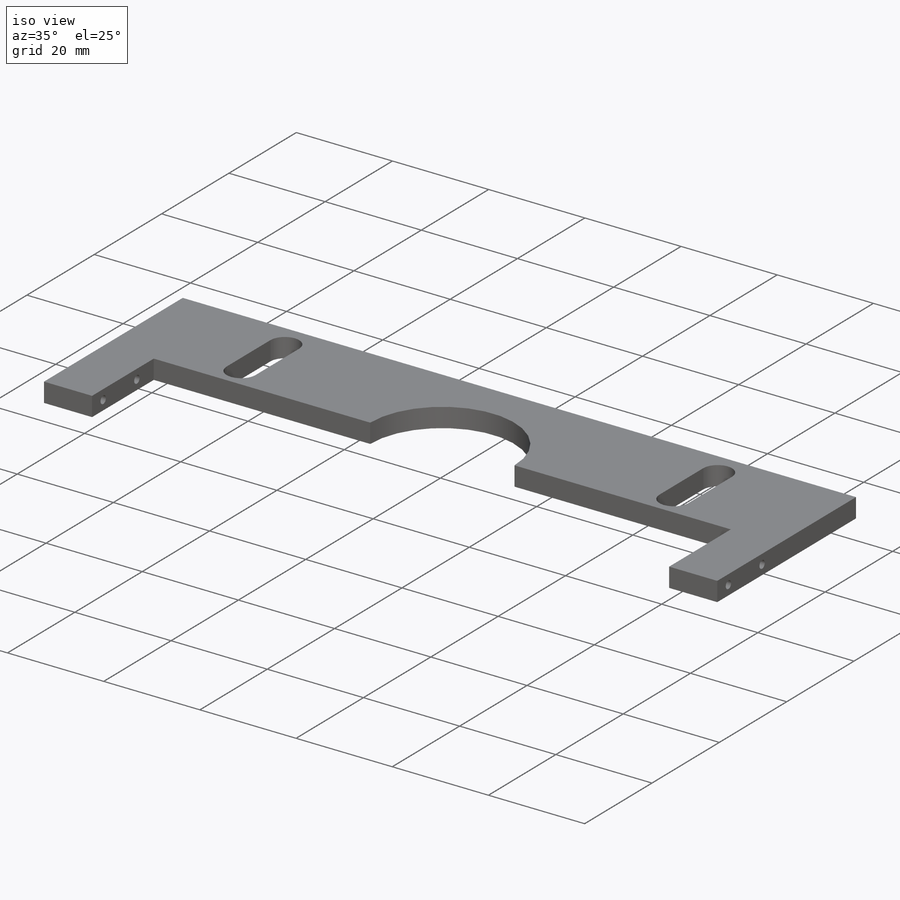
[diagram: iso view]
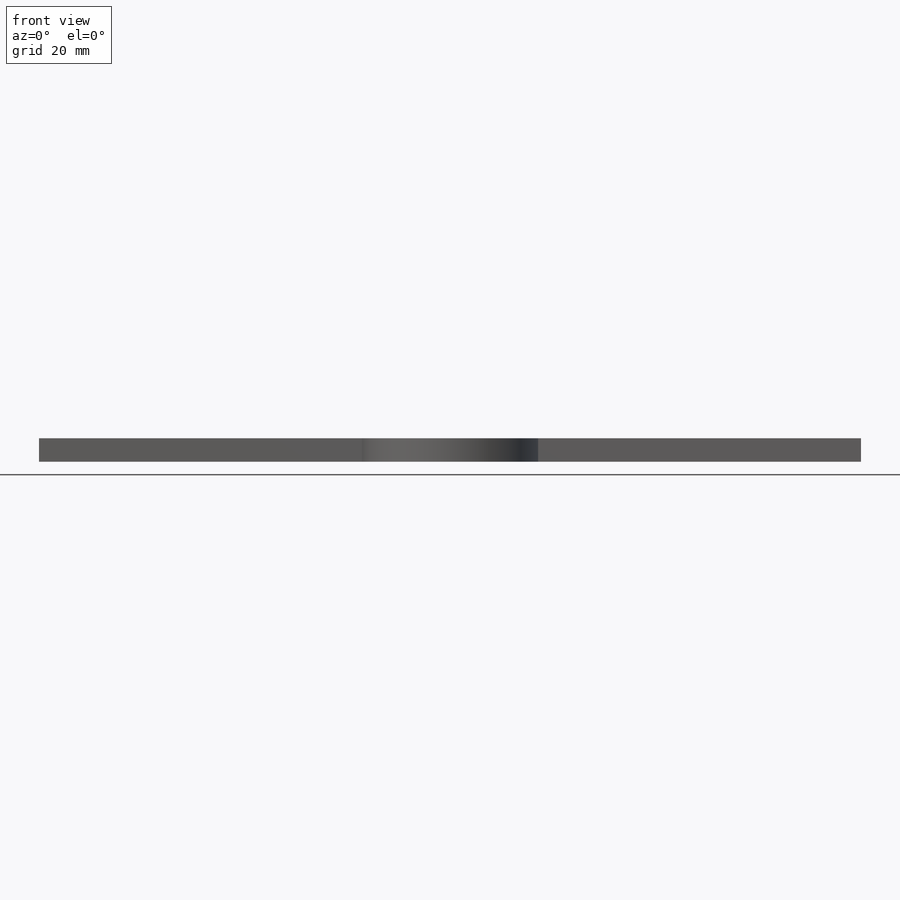
[diagram: front view]
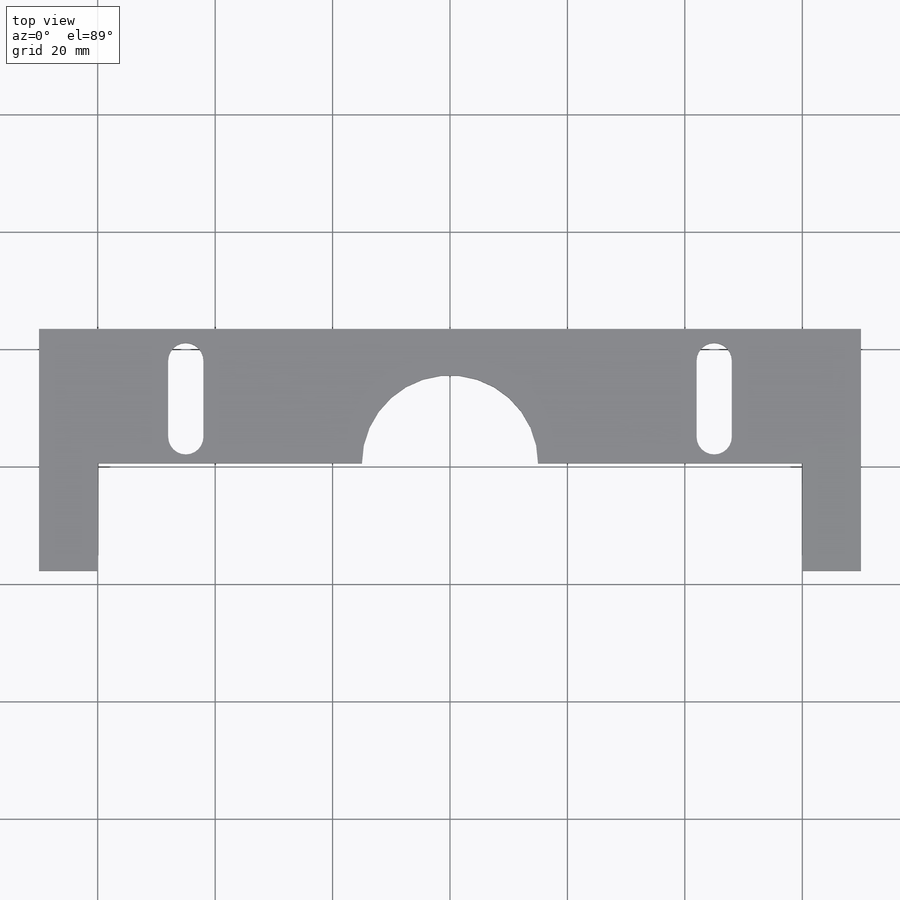
[diagram: top view]
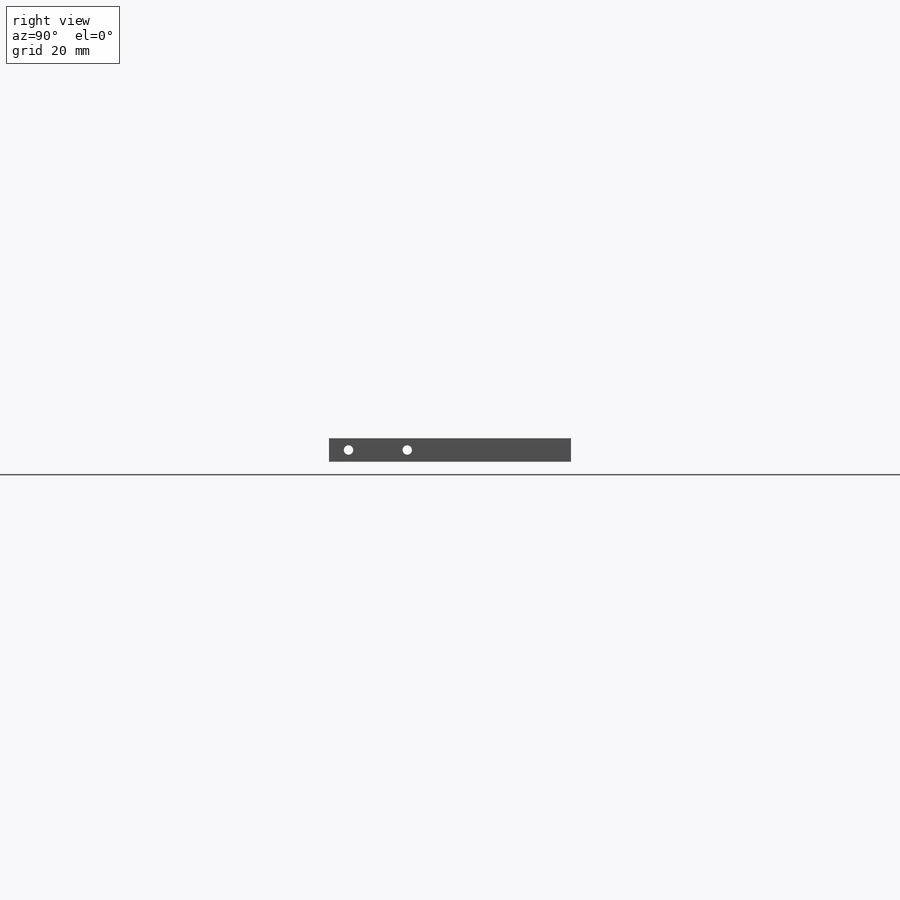
[diagram: right view]
SOLIDWORKS PART (.sldprt)
format: sldprt  version: not decoded by parser v0  size: 320,512 bytes
history: native  units: mm
features: sketch x11, cut_extrude x5, extrude x3, thread x2, material x1, hole x1, mirror x1 (+12 scaffold rows collapsed)
feature tree (36):
  scaffold x12  (default folders/planes/origin — collapsed)
  material  "A286 Iron Base Superalloy"
  sketch  "Sketch2"  dims[D1=140.0mm D2=38.89mm]
  extrude  "Boss-Extrude1"  Depth=4mm
  sketch  "Sketch3"  dims[c1.D1=2.0mm c1.D2=25.0mm c1.D3=12.5mm c2.D2=5.0mm c2.D3=12.0mm c3.D2=5.0mm c3.D3=10.0mm]
  hole  "M2x0.4 Tapped Hole1"  Diameter=1.6mm Depth=18mm
  sketch  "Sketch5"
  sketch  "Sketch4"  dims[hole-wizard template sketch: 47 standard entries collapsed; hole parameters kept: c15.Tap Drill Depth=18.0mm c15.D3=~14.816244mm c15.Drill Angle=118.0deg]
  thread  "Hole Thread1"  Diameter=4mm  [1 undecoded]
  thread  "Hole Thread2"  Diameter=4mm  [1 undecoded]
  mirror  "Mirror1"
  sketch  "Sketch6"  dims[D1=20.0mm D2=120.0mm D3=60.0mm]
  cut_extrude  "Cut-Extrude1"  [1 undecoded]
  sketch  "Sketch8"  dims[D1=2.29mm D2=2.29mm]
  extrude  "Boss-Extrude2"  [1 undecoded]
  sketch  "Sketch9"
  cut_extrude  "Cut-Extrude3"  [1 undecoded]
  sketch  "Sketch10"  dims[D1=4.0mm]
  extrude  "Boss-Extrude3"  [1 undecoded]
  sketch  "Sketch11"  dims[D1=3.97mm]
  cut_extrude  "Cut-Extrude4"  Depth=10mm
  sketch  "Sketch7"  dims[c1.D1=6.0mm c1.D2=6.0mm c1.D4=3.0mm c1.D3=5.0mm c2.D4=5.0mm c2.D5=90.0mm c2.D6=45.0mm c2.D7=6.0mm c2.D8=6.0mm c2.D1=13.0mm c2.D2=13.0mm c2.D3=4.0mm c3.D4=4.0mm c3.D3=4.5mm c4.D4=4.5mm]
  cut_extrude  "Cut-Extrude5"  [1 undecoded]
  sketch  "Sketch13"  dims[D1=15.0mm]
  cut_extrude  "Cut-Extrude6"  Depth=10mm
decode coverage: 15 of 23 modeling features carry decoded parameters
note: ~ marks probable driven/reference dimensions
note: 7 parameter values undecoded
summary: no parameter record found for 5 features
note: suppression state not decoded; provenance and decode notes live in map.json
